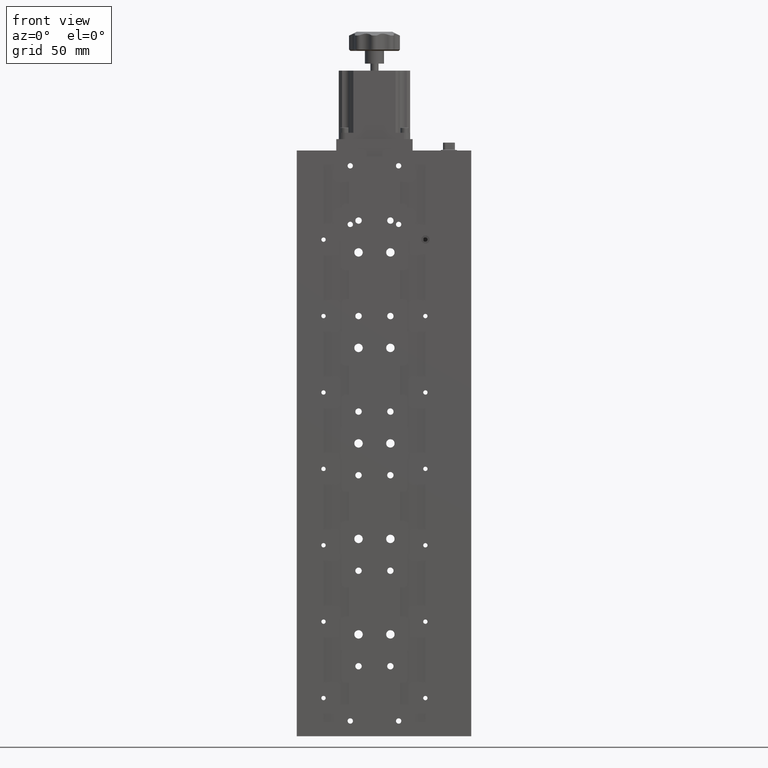
[diagram: clean part render]
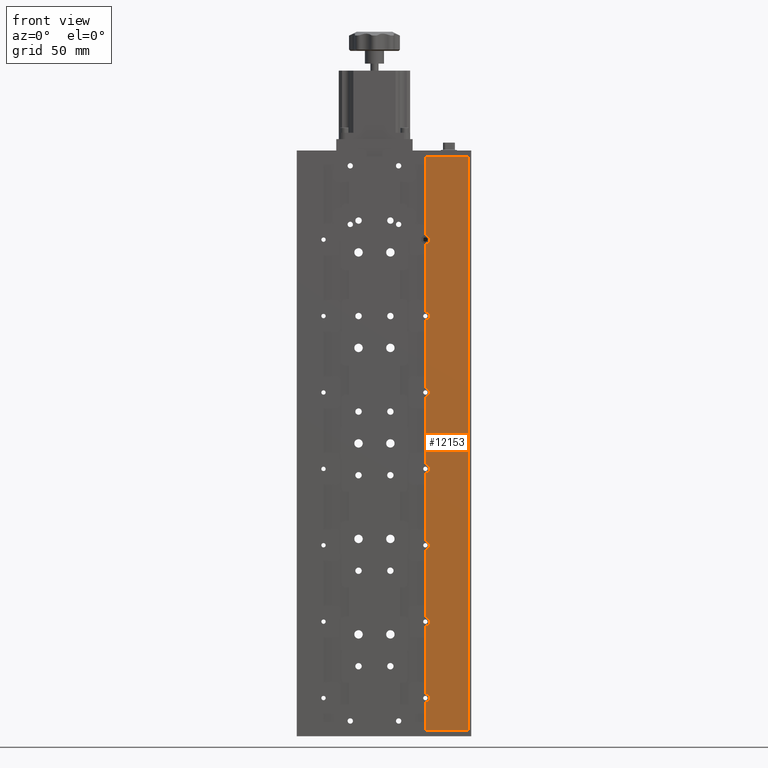
[diagram: same view with one face highlighted and labeled with its STEP entity id]
A machine part, front view. The second image highlights one B-rep face of the part: STEP entity #12153.
In plain terms, the highlighted planar face has unit normal (-0, 1, 0).
Its self-contained STEP definition (entity closure, byte-faithful):
#466 = DIRECTION ( 'NONE',  ( 0.0000000000000000000, 0.0000000000000000000, -1.000000000000000000 ) ) ;
#493 = LINE ( 'NONE', #11405, #8224 ) ;
#604 = VERTEX_POINT ( 'NONE', #38474 ) ;
#680 = CIRCLE ( 'NONE', #2813, 3.249999999999996000 ) ;
#709 = CARTESIAN_POINT ( 'NONE',  ( 29.38919164396005400, -10.41765062064795100, -83.25000000000004300 ) ) ;
#736 = EDGE_CURVE ( 'NONE', #27956, #33486, #27187, .T. ) ;
#901 = CARTESIAN_POINT ( 'NONE',  ( 29.38919164396005400, -10.41765062064795100, 225.0000000000000300 ) ) ;
#1437 = CARTESIAN_POINT ( 'NONE',  ( 63.38919164396004600, -10.41765062064795300, -225.0000000000000300 ) ) ;
#1483 = VERTEX_POINT ( 'NONE', #16581 ) ;
#1534 = VECTOR ( 'NONE', #31091, 1000.000000000000000 ) ;
#1795 = EDGE_CURVE ( 'NONE', #1483, #7993, #19224, .T. ) ;
#1882 = EDGE_CURVE ( 'NONE', #9209, #34677, #19699, .T. ) ;
#2100 = CARTESIAN_POINT ( 'NONE',  ( 29.38919164396005400, -10.41765062064795300, 43.24999999999995000 ) ) ;
#2156 = VECTOR ( 'NONE', #25953, 1000.000000000000000 ) ;
#2550 = CARTESIAN_POINT ( 'NONE',  ( -74.98580835603993900, -10.41765062064795100, -225.0000000000000300 ) ) ;
#2813 = AXIS2_PLACEMENT_3D ( 'NONE', #38152, #18362, #41493 ) ;
#3207 = VERTEX_POINT ( 'NONE', #25633 ) ;
#3860 = AXIS2_PLACEMENT_3D ( 'NONE', #36736, #16949, #40108 ) ;
#4041 = VERTEX_POINT ( 'NONE', #9285 ) ;
#4315 = VERTEX_POINT ( 'NONE', #30383 ) ;
#4450 = LINE ( 'NONE', #32022, #17894 ) ;
#4507 = ORIENTED_EDGE ( 'NONE', *, *, #27940, .F. ) ;
#4586 = CARTESIAN_POINT ( 'NONE',  ( 29.38919164396005400, -10.41765062064795100, 225.0000000000000300 ) ) ;
#4690 = DIRECTION ( 'NONE',  ( -0.0000000000000000000, -1.000000000000000000, -0.0000000000000000000 ) ) ;
#5029 = AXIS2_PLACEMENT_3D ( 'NONE', #40070, #20237, #466 ) ;
#5239 = LINE ( 'NONE', #37162, #14035 ) ;
#5379 = CARTESIAN_POINT ( 'NONE',  ( 29.38919164396005400, -10.41765062064795100, 225.0000000000000300 ) ) ;
#5868 = DIRECTION ( 'NONE',  ( -1.000000000000000000, -3.029454718961576000E-018, 0.0000000000000000000 ) ) ;
#6579 = CARTESIAN_POINT ( 'NONE',  ( 63.38919164396006100, -10.41765062064795100, 225.0000000000000300 ) ) ;
#7241 = ORIENTED_EDGE ( 'NONE', *, *, #12426, .F. ) ;
#7835 = ORIENTED_EDGE ( 'NONE', *, *, #38802, .F. ) ;
#7968 = CIRCLE ( 'NONE', #23756, 3.250000000000002700 ) ;
#7993 = VERTEX_POINT ( 'NONE', #22649 ) ;
#8224 = VECTOR ( 'NONE', #11828, 1000.000000000000000 ) ;
#8899 = CARTESIAN_POINT ( 'NONE',  ( 29.38919164395998600, -10.41765062064795300, 99.99999999999994300 ) ) ;
#9053 = PLANE ( 'NONE',  #13339 ) ;
#9209 = VERTEX_POINT ( 'NONE', #36184 ) ;
#9285 = CARTESIAN_POINT ( 'NONE',  ( 29.38919164396006100, -10.41765062064795100, 225.0000000000000300 ) ) ;
#9393 = CARTESIAN_POINT ( 'NONE',  ( 29.38919164396005400, -10.41765062064795100, -16.75000000000005000 ) ) ;
#9523 = CARTESIAN_POINT ( 'NONE',  ( 29.38919164396005400, -10.41765062064795100, -76.75000000000005700 ) ) ;
#9554 = EDGE_CURVE ( 'NONE', #18316, #4315, #15458, .T. ) ;
#9777 = CIRCLE ( 'NONE', #3860, 3.250000000000002700 ) ;
#10188 = VERTEX_POINT ( 'NONE', #10576 ) ;
#10296 = LINE ( 'NONE', #4586, #1534 ) ;
#10576 = CARTESIAN_POINT ( 'NONE',  ( 29.38919164396005400, -10.41765062064795300, 163.2499999999999400 ) ) ;
#10844 = EDGE_CURVE ( 'NONE', #34151, #10188, #7968, .T. ) ;
#10982 = CARTESIAN_POINT ( 'NONE',  ( 29.38919164396005400, -10.41765062064795100, 225.0000000000000300 ) ) ;
#11140 = CIRCLE ( 'NONE', #5029, 3.250000000000002700 ) ;
#11405 = CARTESIAN_POINT ( 'NONE',  ( -74.98580835603993900, -10.41765062064795100, -225.0000000000000300 ) ) ;
#11728 = ORIENTED_EDGE ( 'NONE', *, *, #10844, .F. ) ;
#11735 = DIRECTION ( 'NONE',  ( 0.0000000000000000000, 0.0000000000000000000, 1.000000000000000000 ) ) ;
#11757 = ORIENTED_EDGE ( 'NONE', *, *, #736, .T. ) ;
#11828 = DIRECTION ( 'NONE',  ( -1.000000000000000000, -3.029454718961576000E-018, -0.0000000000000000000 ) ) ;
#12024 = ORIENTED_EDGE ( 'NONE', *, *, #20829, .F. ) ;
#12153 = ADVANCED_FACE ( 'NONE', ( #12536 ), #9053, .F. ) ;
#12217 = ORIENTED_EDGE ( 'NONE', *, *, #24179, .F. ) ;
#12222 = DIRECTION ( 'NONE',  ( 0.0000000000000000000, 0.0000000000000000000, -1.000000000000000000 ) ) ;
#12426 = EDGE_CURVE ( 'NONE', #33799, #1483, #5239, .T. ) ;
#12536 = FACE_OUTER_BOUND ( 'NONE', #23156, .T. ) ;
#13339 = AXIS2_PLACEMENT_3D ( 'NONE', #2550, #25671, #5868 ) ;
#13695 = DIRECTION ( 'NONE',  ( -0.0000000000000000000, -1.000000000000000000, -0.0000000000000000000 ) ) ;
#14035 = VECTOR ( 'NONE', #14078, 1000.000000000000000 ) ;
#14078 = DIRECTION ( 'NONE',  ( 0.0000000000000000000, 0.0000000000000000000, 1.000000000000000000 ) ) ;
#14756 = LINE ( 'NONE', #901, #39040 ) ;
#14968 = ORIENTED_EDGE ( 'NONE', *, *, #1882, .F. ) ;
#15201 = ORIENTED_EDGE ( 'NONE', *, *, #37844, .F. ) ;
#15458 = LINE ( 'NONE', #5379, #32038 ) ;
#15476 = VERTEX_POINT ( 'NONE', #9523 ) ;
#15543 = CARTESIAN_POINT ( 'NONE',  ( 29.38919164396005400, -10.41765062064795100, -203.2500000000000300 ) ) ;
#15877 = ORIENTED_EDGE ( 'NONE', *, *, #27462, .F. ) ;
#16559 = ORIENTED_EDGE ( 'NONE', *, *, #23716, .T. ) ;
#16581 = CARTESIAN_POINT ( 'NONE',  ( 29.38919164396005400, -10.41765062064795300, 96.74999999999995700 ) ) ;
#16595 = VECTOR ( 'NONE', #39482, 1000.000000000000000 ) ;
#16949 = DIRECTION ( 'NONE',  ( -0.0000000000000000000, -1.000000000000000000, -0.0000000000000000000 ) ) ;
#17018 = DIRECTION ( 'NONE',  ( -0.0000000000000000000, -1.000000000000000000, -0.0000000000000000000 ) ) ;
#17117 = CIRCLE ( 'NONE', #30935, 3.250000000000002700 ) ;
#17626 = LINE ( 'NONE', #32976, #16595 ) ;
#17894 = VECTOR ( 'NONE', #38633, 1000.000000000000000 ) ;
#18146 = EDGE_CURVE ( 'NONE', #4315, #33799, #680, .T. ) ;
#18316 = VERTEX_POINT ( 'NONE', #9393 ) ;
#18362 = DIRECTION ( 'NONE',  ( -0.0000000000000000000, -1.000000000000000000, -0.0000000000000000000 ) ) ;
#18384 = VECTOR ( 'NONE', #34250, 1000.000000000000000 ) ;
#18826 = CARTESIAN_POINT ( 'NONE',  ( 29.38919164396005400, -10.41765062064795100, -143.2500000000000600 ) ) ;
#19224 = CIRCLE ( 'NONE', #40053, 3.250000000000002700 ) ;
#19699 = LINE ( 'NONE', #42300, #2156 ) ;
#20237 = DIRECTION ( 'NONE',  ( -0.0000000000000000000, -1.000000000000000000, -0.0000000000000000000 ) ) ;
#20829 = EDGE_CURVE ( 'NONE', #22101, #9209, #17117, .T. ) ;
#20947 = CARTESIAN_POINT ( 'NONE',  ( 63.38919164396003200, -10.41765062064795100, -225.0000000000000300 ) ) ;
#21549 = CARTESIAN_POINT ( 'NONE',  ( 29.38919164396005400, -10.41765062064795100, 225.0000000000000300 ) ) ;
#22016 = EDGE_CURVE ( 'NONE', #22168, #22101, #38130, .T. ) ;
#22101 = VERTEX_POINT ( 'NONE', #18826 ) ;
#22168 = VERTEX_POINT ( 'NONE', #42388 ) ;
#22649 = CARTESIAN_POINT ( 'NONE',  ( 29.38919164396005400, -10.41765062064795300, 103.2499999999999400 ) ) ;
#22831 = ORIENTED_EDGE ( 'NONE', *, *, #22016, .F. ) ;
#23156 = EDGE_LOOP ( 'NONE', ( #11728, #4507, #42753, #7241, #32321, #30110, #23185, #15877, #39655, #14968, #12024, #22831, #7835, #12217, #32463, #11757, #16559, #15201 ) ) ;
#23185 = ORIENTED_EDGE ( 'NONE', *, *, #35209, .F. ) ;
#23716 = EDGE_CURVE ( 'NONE', #33486, #4041, #4450, .T. ) ;
#23756 = AXIS2_PLACEMENT_3D ( 'NONE', #33527, #13695, #36805 ) ;
#24104 = EDGE_CURVE ( 'NONE', #34677, #15476, #11140, .T. ) ;
#24179 = EDGE_CURVE ( 'NONE', #3207, #41275, #14756, .T. ) ;
#24488 = CARTESIAN_POINT ( 'NONE',  ( 29.38919164395998600, -10.41765062064795100, -20.00000000000004600 ) ) ;
#25633 = CARTESIAN_POINT ( 'NONE',  ( 29.38919164396005400, -10.41765062064795300, -224.9999999999999700 ) ) ;
#25671 = DIRECTION ( 'NONE',  ( -3.029454718961576000E-018, 1.000000000000000000, 0.0000000000000000000 ) ) ;
#25953 = DIRECTION ( 'NONE',  ( 0.0000000000000000000, 0.0000000000000000000, 1.000000000000000000 ) ) ;
#27187 = LINE ( 'NONE', #20947, #18384 ) ;
#27462 = EDGE_CURVE ( 'NONE', #15476, #604, #17626, .T. ) ;
#27549 = VECTOR ( 'NONE', #30821, 1000.000000000000000 ) ;
#27850 = DIRECTION ( 'NONE',  ( 0.0000000000000000000, 0.0000000000000000000, -1.000000000000000000 ) ) ;
#27940 = EDGE_CURVE ( 'NONE', #7993, #34151, #10296, .T. ) ;
#27956 = VERTEX_POINT ( 'NONE', #1437 ) ;
#28594 = LINE ( 'NONE', #10982, #27549 ) ;
#29374 = VECTOR ( 'NONE', #11735, 1000.000000000000000 ) ;
#29499 = EDGE_CURVE ( 'NONE', #27956, #3207, #493, .T. ) ;
#30110 = ORIENTED_EDGE ( 'NONE', *, *, #9554, .F. ) ;
#30383 = CARTESIAN_POINT ( 'NONE',  ( 29.38919164396005400, -10.41765062064795300, 36.74999999999995700 ) ) ;
#30821 = DIRECTION ( 'NONE',  ( 0.0000000000000000000, 0.0000000000000000000, 1.000000000000000000 ) ) ;
#30935 = AXIS2_PLACEMENT_3D ( 'NONE', #36803, #17018, #40161 ) ;
#31091 = DIRECTION ( 'NONE',  ( 0.0000000000000000000, 0.0000000000000000000, 1.000000000000000000 ) ) ;
#32022 = CARTESIAN_POINT ( 'NONE',  ( -74.98580835603993900, -10.41765062064795100, 225.0000000000000300 ) ) ;
#32038 = VECTOR ( 'NONE', #35178, 1000.000000000000000 ) ;
#32058 = DIRECTION ( 'NONE',  ( -0.0000000000000000000, -1.000000000000000000, -0.0000000000000000000 ) ) ;
#32321 = ORIENTED_EDGE ( 'NONE', *, *, #18146, .F. ) ;
#32463 = ORIENTED_EDGE ( 'NONE', *, *, #29499, .F. ) ;
#32976 = CARTESIAN_POINT ( 'NONE',  ( 29.38919164396005400, -10.41765062064795100, 225.0000000000000300 ) ) ;
#33486 = VERTEX_POINT ( 'NONE', #6579 ) ;
#33527 = CARTESIAN_POINT ( 'NONE',  ( 29.38919164395998600, -10.41765062064795300, 159.9999999999999400 ) ) ;
#33799 = VERTEX_POINT ( 'NONE', #2100 ) ;
#34151 = VERTEX_POINT ( 'NONE', #36990 ) ;
#34154 = CIRCLE ( 'NONE', #40012, 3.249999999999996000 ) ;
#34250 = DIRECTION ( 'NONE',  ( 0.0000000000000000000, 0.0000000000000000000, 1.000000000000000000 ) ) ;
#34677 = VERTEX_POINT ( 'NONE', #709 ) ;
#35178 = DIRECTION ( 'NONE',  ( 0.0000000000000000000, 0.0000000000000000000, 1.000000000000000000 ) ) ;
#35209 = EDGE_CURVE ( 'NONE', #604, #18316, #34154, .T. ) ;
#36184 = CARTESIAN_POINT ( 'NONE',  ( 29.38919164396005400, -10.41765062064795100, -136.7500000000000300 ) ) ;
#36736 = CARTESIAN_POINT ( 'NONE',  ( 29.38919164395998600, -10.41765062064795100, -200.0000000000000300 ) ) ;
#36803 = CARTESIAN_POINT ( 'NONE',  ( 29.38919164395998600, -10.41765062064795100, -140.0000000000000300 ) ) ;
#36805 = DIRECTION ( 'NONE',  ( 0.0000000000000000000, 0.0000000000000000000, -1.000000000000000000 ) ) ;
#36990 = CARTESIAN_POINT ( 'NONE',  ( 29.38919164396005400, -10.41765062064795300, 156.7499999999999400 ) ) ;
#37125 = DIRECTION ( 'NONE',  ( 0.0000000000000000000, 0.0000000000000000000, 1.000000000000000000 ) ) ;
#37162 = CARTESIAN_POINT ( 'NONE',  ( 29.38919164396005400, -10.41765062064795100, 225.0000000000000300 ) ) ;
#37844 = EDGE_CURVE ( 'NONE', #10188, #4041, #28594, .T. ) ;
#38130 = LINE ( 'NONE', #21549, #29374 ) ;
#38152 = CARTESIAN_POINT ( 'NONE',  ( 29.38919164395998600, -10.41765062064795300, 39.99999999999995000 ) ) ;
#38474 = CARTESIAN_POINT ( 'NONE',  ( 29.38919164396005400, -10.41765062064795100, -23.25000000000004300 ) ) ;
#38633 = DIRECTION ( 'NONE',  ( -1.000000000000000000, -3.029454718961576000E-018, -0.0000000000000000000 ) ) ;
#38802 = EDGE_CURVE ( 'NONE', #41275, #22168, #9777, .T. ) ;
#39040 = VECTOR ( 'NONE', #37125, 1000.000000000000000 ) ;
#39482 = DIRECTION ( 'NONE',  ( 0.0000000000000000000, 0.0000000000000000000, 1.000000000000000000 ) ) ;
#39655 = ORIENTED_EDGE ( 'NONE', *, *, #24104, .F. ) ;
#40012 = AXIS2_PLACEMENT_3D ( 'NONE', #24488, #4690, #27850 ) ;
#40053 = AXIS2_PLACEMENT_3D ( 'NONE', #8899, #32058, #12222 ) ;
#40070 = CARTESIAN_POINT ( 'NONE',  ( 29.38919164395998600, -10.41765062064795100, -80.00000000000004300 ) ) ;
#40108 = DIRECTION ( 'NONE',  ( 0.0000000000000000000, 0.0000000000000000000, -1.000000000000000000 ) ) ;
#40161 = DIRECTION ( 'NONE',  ( 0.0000000000000000000, 0.0000000000000000000, -1.000000000000000000 ) ) ;
#41275 = VERTEX_POINT ( 'NONE', #15543 ) ;
#41493 = DIRECTION ( 'NONE',  ( 0.0000000000000000000, 0.0000000000000000000, -1.000000000000000000 ) ) ;
#42300 = CARTESIAN_POINT ( 'NONE',  ( 29.38919164396005400, -10.41765062064795100, 225.0000000000000300 ) ) ;
#42388 = CARTESIAN_POINT ( 'NONE',  ( 29.38919164396005400, -10.41765062064795100, -196.7500000000000300 ) ) ;
#42753 = ORIENTED_EDGE ( 'NONE', *, *, #1795, .F. ) ;